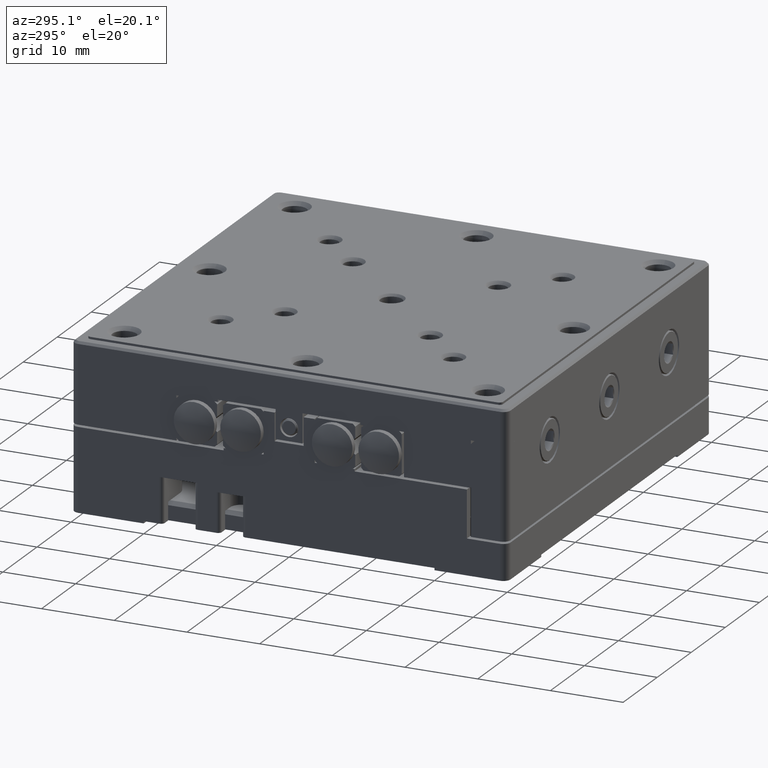
[diagram: clean part render]
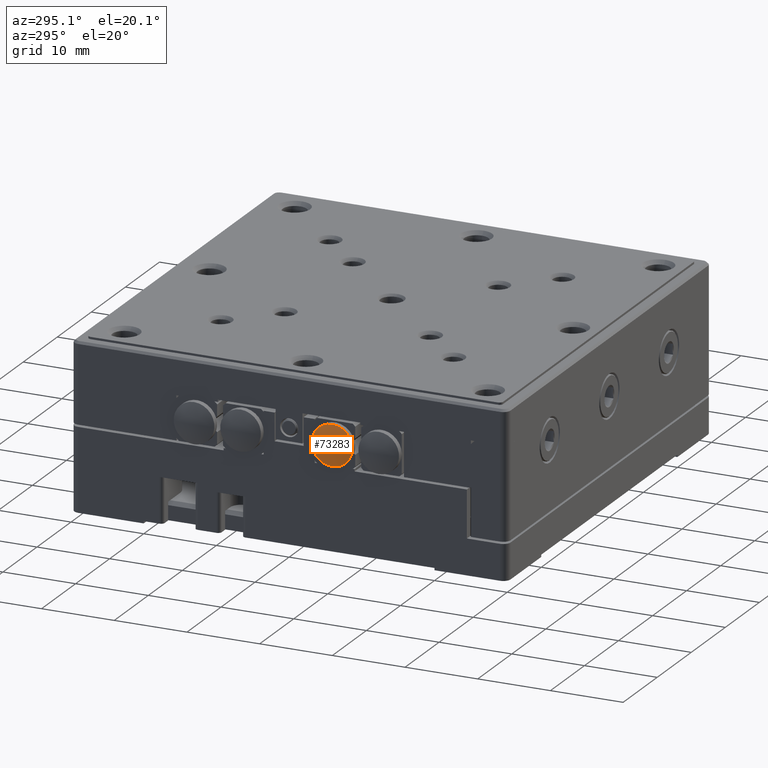
[diagram: same view with one face highlighted and labeled with its STEP entity id]
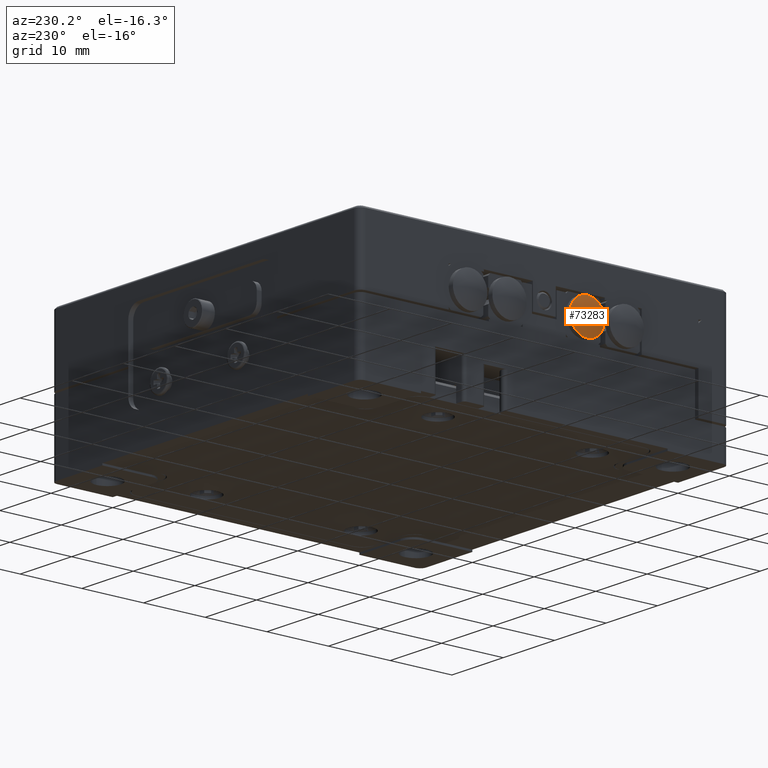
[diagram: same view with one face highlighted and labeled with its STEP entity id]
A machine part, auxiliary view. The second image highlights one B-rep face of the part: STEP entity #73283.
A second angle (auxiliary view) of the same face is appended — the face is thin or edge-on in the first view.
In plain terms, the highlighted face is a freeform B-spline surface patch.
Its self-contained STEP definition (entity closure, byte-faithful):
#1935 = ORIENTED_EDGE ( 'NONE', *, *, #64548, .F. ) ;
#6517 = CARTESIAN_POINT ( 'NONE',  ( -31.00456142563070827, -9.152646937673134531, 4.210589291284730251 ) ) ;
#7016 = CARTESIAN_POINT ( 'NONE',  ( -31.01130096315791818, -3.459344119590488820, 4.211704175873338230 ) ) ;
#7503 = CARTESIAN_POINT ( 'NONE',  ( -30.15399988577692270, -9.152646937673134531, 0.8094798711569287653 ) ) ;
#7807 =( BOUNDED_SURFACE ( )  B_SPLINE_SURFACE ( 3, 3, ( 
 ( #44256, #52603, #7016, #95733 ),
 ( #81534, #44754, #60434, #82026 ),
 ( #67768, #73196, #74648, #20755 ),
 ( #7503, #82511, #6517, #50641 ) ),
 .UNSPECIFIED., .F., .F., .F. ) 
 B_SPLINE_SURFACE_WITH_KNOTS ( ( 4, 4 ),
 ( 4, 4 ),
 ( 0.000000000000000000, 1.000000000000000000 ),
 ( 0.000000000000000000, 1.000000000000000000 ),
 .UNSPECIFIED. ) 
 GEOMETRIC_REPRESENTATION_ITEM ( )  RATIONAL_B_SPLINE_SURFACE ( (
 ( 1.000000000000000000, 0.9207362562936888262, 0.9207362562936888262, 1.000000000000000000),
 ( 0.9201911022256565875, 0.8472533105380141150, 0.8472533105380141150, 0.9201911022256565875),
 ( 0.9201911022256565875, 0.8472533105380141150, 0.8472533105380141150, 0.9201911022256565875),
 ( 1.000000000000000000, 0.9207362562936888262, 0.9207362562936888262, 1.000000000000000000) ) ) 
 REPRESENTATION_ITEM ( '' )  SURFACE ( )  );
#19186 = AXIS2_PLACEMENT_3D ( 'NONE', #84550, #47269, #77168 ) ;
#20755 = CARTESIAN_POINT ( 'NONE',  ( -31.01115948420342150, -7.338287479991880247, 6.266888056326882506 ) ) ;
#41280 = CARTESIAN_POINT ( 'NONE',  ( -30.80659966456859777, -6.299999999999999822, 0.5000000000000000000 ) ) ;
#42593 = CIRCLE ( 'NONE', #19186, 2.799999999999999822 ) ;
#43305 = FACE_OUTER_BOUND ( 'NONE', #46369, .T. ) ;
#44256 = CARTESIAN_POINT ( 'NONE',  ( -30.15969803399555360, -3.459344119590488820, 0.8064305902837149986 ) ) ;
#44754 = CARTESIAN_POINT ( 'NONE',  ( -32.03220000980650184, -5.275924997419032536, 2.236113120316652658 ) ) ;
#46369 = EDGE_LOOP ( 'NONE', ( #1935 ) ) ;
#47269 = DIRECTION ( 'NONE',  ( 1.000000000000000000, -0.000000000000000000, -0.000000000000000000 ) ) ;
#49122 = VERTEX_POINT ( 'NONE', #41280 ) ;
#50641 = CARTESIAN_POINT ( 'NONE',  ( -30.14778572180814464, -9.152646937673134531, 5.802097786486458020 ) ) ;
#52603 = CARTESIAN_POINT ( 'NONE',  ( -31.01355342589059205, -3.459344119590488820, 2.402018134559243734 ) ) ;
#60434 = CARTESIAN_POINT ( 'NONE',  ( -32.02953139739851451, -5.275924997419032536, 4.380144430743129647 ) ) ;
#64548 = EDGE_CURVE ( 'NONE', #49122, #49122, #42593, .T. ) ;
#67768 = CARTESIAN_POINT ( 'NONE',  ( -31.01852799272398897, -7.338287479991880247, 0.3468402697073405538 ) ) ;
#73196 = CARTESIAN_POINT ( 'NONE',  ( -32.02975765772238503, -7.338287479991878470, 2.236510901513484750 ) ) ;
#73283 = ADVANCED_FACE ( 'NONE', ( #43305 ), #7807, .T. ) ;
#74648 = CARTESIAN_POINT ( 'NONE',  ( -32.02709004309326701, -7.338287479991878470, 4.379740570941284439 ) ) ;
#77168 = DIRECTION ( 'NONE',  ( 0.000000000000000000, 0.000000000000000000, -1.000000000000000000 ) ) ;
#81534 = CARTESIAN_POINT ( 'NONE',  ( -31.02059211042188025, -5.275924997419032536, 0.3457356872404168668 ) ) ;
#82026 = CARTESIAN_POINT ( 'NONE',  ( -31.01322084582779937, -5.275924997419032536, 6.267997773655997307 ) ) ;
#82511 = CARTESIAN_POINT ( 'NONE',  ( -31.00681113392169053, -9.152646937673134531, 2.403116238713116637 ) ) ;
#84550 = CARTESIAN_POINT ( 'NONE',  ( -30.80659966456859777, -6.299999999999999822, 3.299999999999999822 ) ) ;
#95733 = CARTESIAN_POINT ( 'NONE',  ( -30.15347626168380302, -3.459344119590488820, 5.805161242523164233 ) ) ;